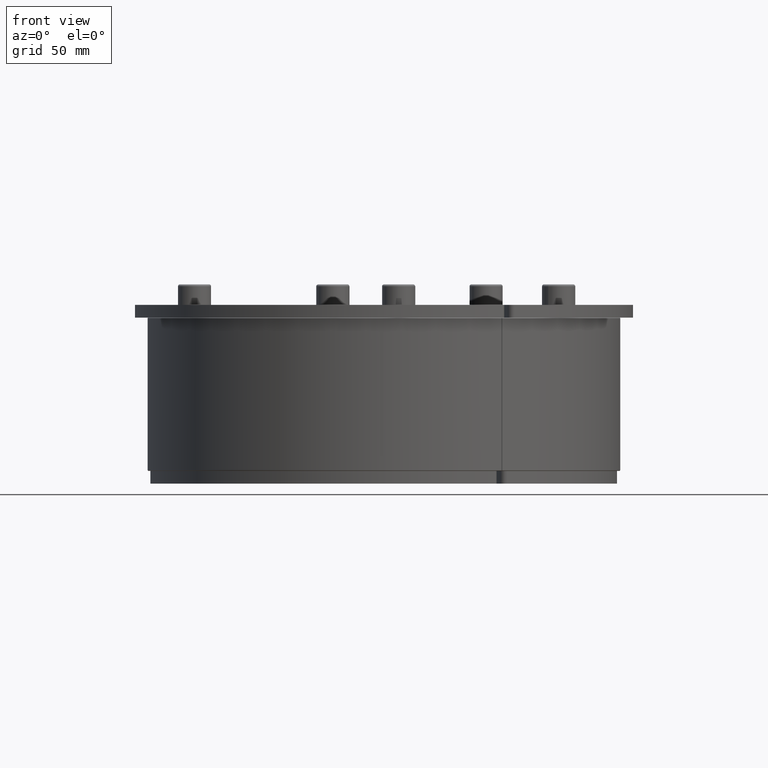
[diagram: clean part render]
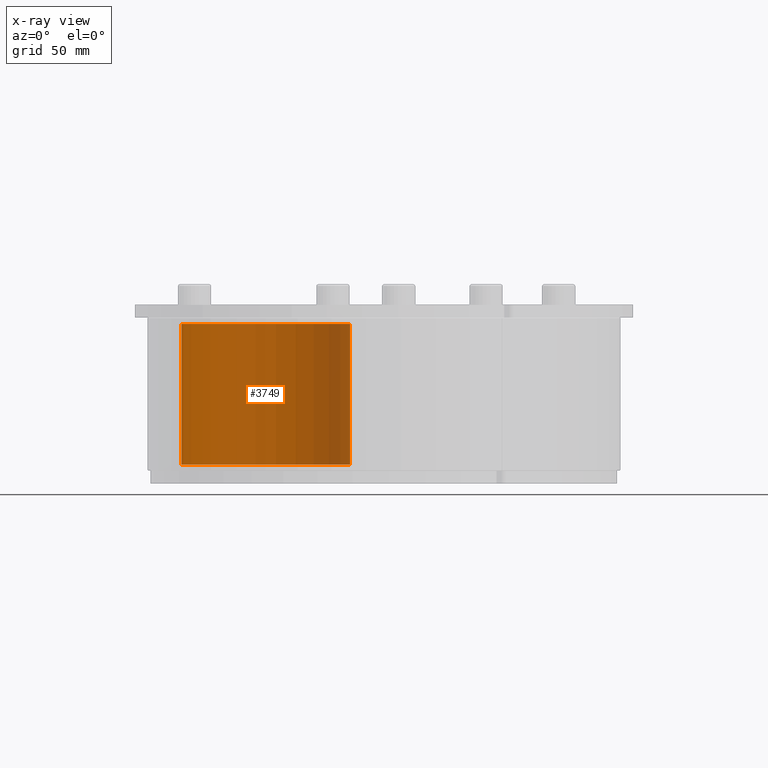
[diagram: x-ray — body ghosted, one internal face saturated and labeled with its STEP entity id]
A machine part, front view, then the same camera in x-ray: the body is ghosted and one INTERNAL B-rep face — a face not visible from any outside direction — is saturated and labeled: STEP entity #3749.
In plain terms, the highlighted cylindrical surface (partial cylindrical patch) has radius 33 mm, axis along (0, -0, -1).
Its self-contained STEP definition (entity closure, byte-faithful):
#3627=CARTESIAN_POINT('',(33.0,0.0,0.0));
#3628=VERTEX_POINT('',#3627);
#3637=CARTESIAN_POINT('',(33.0,0.0,55.0));
#3638=VERTEX_POINT('',#3637);
#3639=CARTESIAN_POINT('',(33.0,0.0,0.0));
#3640=DIRECTION('',(0.0,0.0,1.0));
#3641=VECTOR('',#3640,55.0);
#3642=LINE('',#3639,#3641);
#3643=EDGE_CURVE('',#3628,#3638,#3642,.T.);
#3700=CARTESIAN_POINT('',(-33.0,0.0,0.0));
#3701=VERTEX_POINT('',#3700);
#3709=CARTESIAN_POINT('',(-33.0,0.0,55.0));
#3710=VERTEX_POINT('',#3709);
#3717=CARTESIAN_POINT('',(-33.0,0.0,0.0));
#3718=DIRECTION('',(0.0,0.0,1.0));
#3719=VECTOR('',#3718,55.0);
#3720=LINE('',#3717,#3719);
#3721=EDGE_CURVE('',#3701,#3710,#3720,.T.);
#3726=CARTESIAN_POINT('',(0.0,0.0,0.0));
#3727=DIRECTION('',(0.0,0.0,1.0));
#3728=DIRECTION('',(-1.0,0.0,0.0));
#3729=AXIS2_PLACEMENT_3D('',#3726,#3727,#3728);
#3730=CYLINDRICAL_SURFACE('',#3729,33.0);
#3731=CARTESIAN_POINT('',(0.0,0.0,0.0));
#3732=DIRECTION('',(0.0,0.0,-1.0));
#3733=DIRECTION('',(-1.0,0.0,0.0));
#3734=AXIS2_PLACEMENT_3D('',#3731,#3732,#3733);
#3735=CIRCLE('',#3734,33.0);
#3736=EDGE_CURVE('',#3701,#3628,#3735,.T.);
#3737=ORIENTED_EDGE('',*,*,#3736,.F.);
#3738=ORIENTED_EDGE('',*,*,#3721,.T.);
#3739=CARTESIAN_POINT('',(0.0,0.0,55.0));
#3740=DIRECTION('',(0.0,0.0,1.0));
#3741=DIRECTION('',(-1.0,0.0,0.0));
#3742=AXIS2_PLACEMENT_3D('',#3739,#3740,#3741);
#3743=CIRCLE('',#3742,33.0);
#3744=EDGE_CURVE('',#3638,#3710,#3743,.T.);
#3745=ORIENTED_EDGE('',*,*,#3744,.F.);
#3746=ORIENTED_EDGE('',*,*,#3643,.F.);
#3747=EDGE_LOOP('',(#3737,#3738,#3745,#3746));
#3748=FACE_OUTER_BOUND('',#3747,.T.);
#3749=ADVANCED_FACE('',(#3748),#3730,.T.);